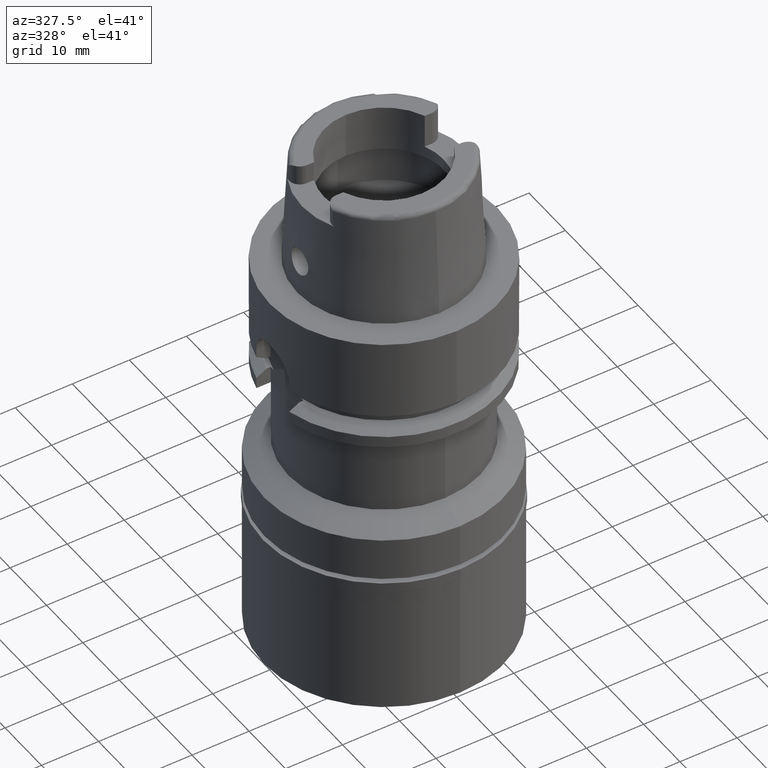
[diagram: clean part render]
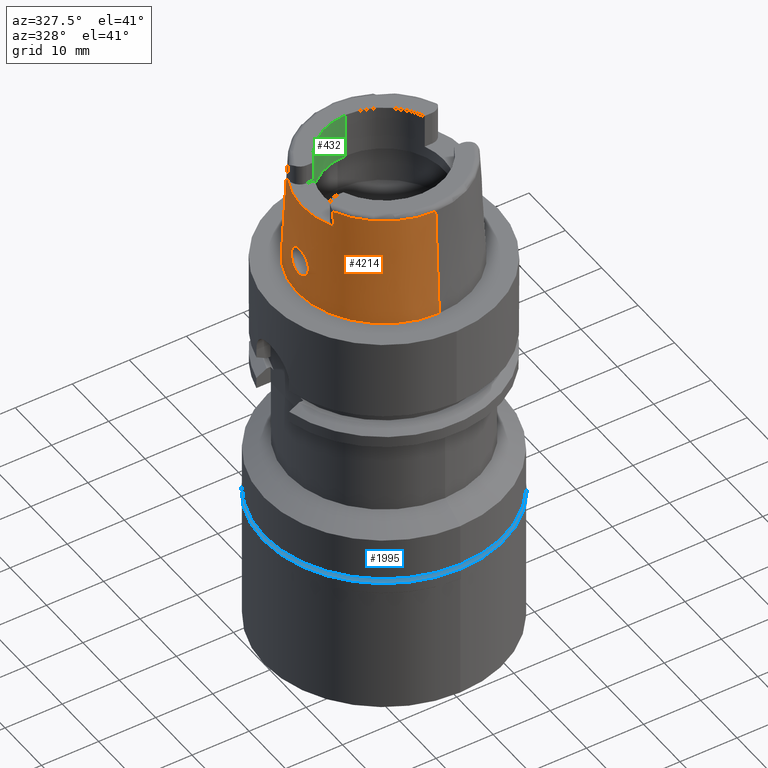
[diagram: same view with three faces highlighted in distinct colors, each labeled with its STEP entity id]
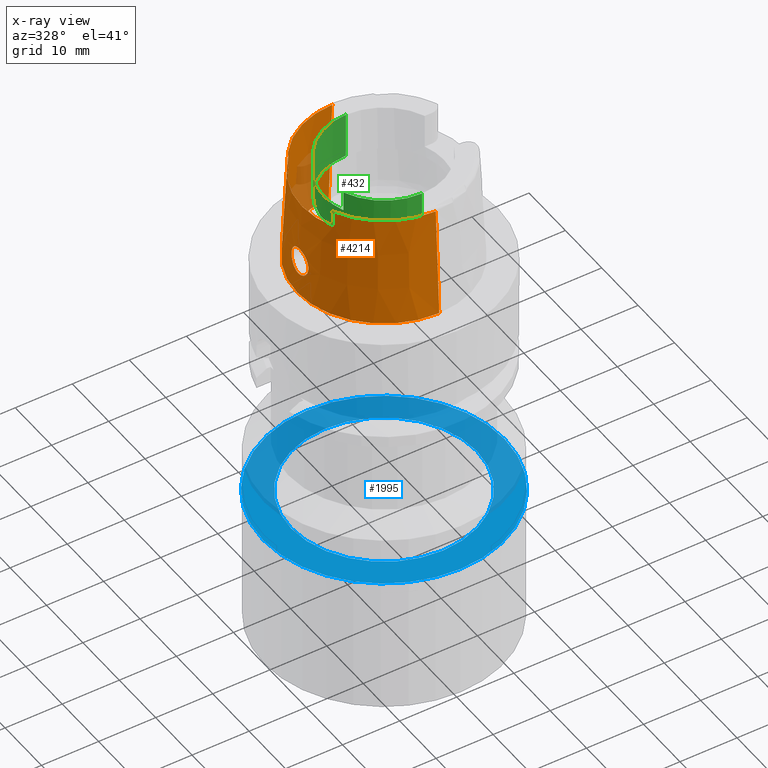
[diagram: x-ray of the same camera — body ghosted, the three highlighted faces saturated]
A machine part, auxiliary view with three faces highlighted in distinct colors.
The next image is the same camera in x-ray (body ghosted, the three faces saturated) — at least one of them is partly hidden behind the body in this view.
Their STEP definitions:

[orange] entity #4214 — the highlighted conical surface has half-angle 2.862 deg.
#6 = CARTESIAN_POINT ( 'NONE',  ( -14.93067039584291145, -1.362090481494300898, 4.144866779355466768 ) ) ;
#13 = CARTESIAN_POINT ( 'NONE',  ( -14.83944829149123557, 1.920865196924755658, 4.734944257616546359 ) ) ;
#55 = CARTESIAN_POINT ( 'NONE',  ( 0.0000000000000000000, -14.23797715755999782, 19.23995141520000018 ) ) ;
#62 = CARTESIAN_POINT ( 'NONE',  ( -14.91310396872252575, -1.491573946310817744, 4.248696059834359495 ) ) ;
#75 = CARTESIAN_POINT ( 'NONE',  ( -14.83806634631329047, 1.927556613228689875, 4.745153509508408973 ) ) ;
#79 = DIRECTION ( 'NONE',  ( 0.0000000000000000000, 0.0000000000000000000, -1.000000000000000000 ) ) ;
#115 = CARTESIAN_POINT ( 'NONE',  ( 0.0000000000000000000, -14.23797715755999782, 19.23995141520000018 ) ) ;
#121 = CARTESIAN_POINT ( 'NONE',  ( -14.74608443316949469, -1.334529073644260322, 7.873385431592797801 ) ) ;
#127 = CIRCLE ( 'NONE', #5142, 14.37497927185999735 ) ;
#143 = EDGE_CURVE ( 'NONE', #242, #1725, #855, .T. ) ;
#152 = CARTESIAN_POINT ( 'NONE',  ( -14.82500466665354644, -1.988607213980087440, 4.841903827004279570 ) ) ;
#178 = CARTESIAN_POINT ( 'NONE',  ( -12.87999944956999876, -6.279959759598000346, 17.41350766865000210 ) ) ;
#180 = CARTESIAN_POINT ( 'NONE',  ( -14.89626996519743152, -1.604267813158911871, 4.351834802983203687 ) ) ;
#196 = CARTESIAN_POINT ( 'NONE',  ( -12.88000052917000104, 6.174983824079000705, 18.32681557891000068 ) ) ;
#203 = CARTESIAN_POINT ( 'NONE',  ( -14.79651620956700953, -2.108384536659244635, 5.080713633402590190 ) ) ;
#227 = CARTESIAN_POINT ( 'NONE',  ( -14.72868848502547934, -1.634210782034564602, 7.618442779722961689 ) ) ;
#242 = VERTEX_POINT ( 'NONE', #115 ) ;
#256 = EDGE_CURVE ( 'NONE', #4327, #2714, #5045, .T. ) ;
#259 = CARTESIAN_POINT ( 'NONE',  ( -14.75065066622446786, 1.248869387038419543, 7.931458822987643487 ) ) ;
#283 = CARTESIAN_POINT ( 'NONE',  ( -14.74916509713738755, 1.277070416429765931, 7.912880851804399818 ) ) ;
#309 = CARTESIAN_POINT ( 'NONE',  ( -14.71548053539402545, 1.856551455255551097, 7.365954699138888451 ) ) ;
#310 = AXIS2_PLACEMENT_3D ( 'NONE', #1813, #3495, #2228 ) ;
#334 = CARTESIAN_POINT ( 'NONE',  ( -14.72894151622812942, 1.630001447954815053, 7.622681509327948746 ) ) ;
#359 = CARTESIAN_POINT ( 'NONE',  ( -14.77214853697977404, 2.195469634617379651, 5.313386016948218327 ) ) ;
#455 = CARTESIAN_POINT ( 'NONE',  ( -15.01500049748000265, 0.2875948828744168684, 3.700000000000000622 ) ) ;
#471 = EDGE_CURVE ( 'NONE', #582, #2415, #3737, .T. ) ;
#478 = CARTESIAN_POINT ( 'NONE',  ( -14.98146849302593075, -0.8667454909646099548, 3.869551887766782272 ) ) ;
#485 = CARTESIAN_POINT ( 'NONE',  ( -14.91210914003032073, 1.507803154627689990, 4.254661582304790635 ) ) ;
#532 = CARTESIAN_POINT ( 'NONE',  ( -14.74145154041230299, -1.418519851082667982, 7.810687532810345779 ) ) ;
#562 = CARTESIAN_POINT ( 'NONE',  ( -14.79464414804532524, -2.115615470398362508, 5.097451385184544215 ) ) ;
#582 = VERTEX_POINT ( 'NONE', #747 ) ;
#585 = CARTESIAN_POINT ( 'NONE',  ( -12.87999970122000093, 6.348941909170999764, 16.80451821834000015 ) ) ;
#589 = FACE_BOUND ( 'NONE', #2978, .T. ) ;
#592 = CARTESIAN_POINT ( 'NONE',  ( -14.70427556541796932, -2.242753402696259890, 6.515453700426912853 ) ) ;
#619 = CARTESIAN_POINT ( 'NONE',  ( -14.71591634762173761, -1.851010656519839204, 7.367641415921653447 ) ) ;
#646 = CARTESIAN_POINT ( 'NONE',  ( -14.72810652126300290, -1.643899438463442442, 7.608616736244662171 ) ) ;
#676 = LINE ( 'NONE', #2374, #1281 ) ;
#683 = CARTESIAN_POINT ( 'NONE',  ( -14.78448543574828378, 2.153253451957574782, 5.191167572852379841 ) ) ;
#710 = CARTESIAN_POINT ( 'NONE',  ( -14.74232365460488126, 1.405631293392346270, 7.826671954222274685 ) ) ;
#735 = CARTESIAN_POINT ( 'NONE',  ( -14.77224879214885966, 0.7505152428910545348, 8.174746617854568242 ) ) ;
#747 = CARTESIAN_POINT ( 'NONE',  ( -12.88000032454999833, -6.068406997786000012, 19.23995951162000040 ) ) ;
#755 = CARTESIAN_POINT ( 'NONE',  ( -14.73755832673177757, 2.287945003074233874, 5.721157903945859324 ) ) ;
#783 = CARTESIAN_POINT ( 'NONE',  ( -14.70335155943988070, 2.120663494321608500, 6.890419546396395312 ) ) ;
#806 = AXIS2_PLACEMENT_3D ( 'NONE', #5338, #1575, #3260 ) ;
#855 = LINE ( 'NONE', #55, #3288 ) ;
#887 = CARTESIAN_POINT ( 'NONE',  ( -14.98573300804535613, -0.8105616222209865995, 3.847409394899663937 ) ) ;
#911 = EDGE_LOOP ( 'NONE', ( #4897, #4172, #5397, #1370, #2483, #4599, #2535, #2963 ) ) ;
#930 = CARTESIAN_POINT ( 'NONE',  ( -14.88469709782662775, 1.675450720866733079, 4.424091095539424145 ) ) ;
#949 = CARTESIAN_POINT ( 'NONE',  ( -14.72892194146861300, -1.630326765904550168, 7.622354658135987115 ) ) ;
#969 = CARTESIAN_POINT ( 'NONE',  ( -12.87999997686000064, 6.279941281248999196, 17.41350821368000368 ) ) ;
#974 = CARTESIAN_POINT ( 'NONE',  ( -14.74370305881243226, -2.273494354010094920, 5.643703912303880799 ) ) ;
#1000 = CARTESIAN_POINT ( 'NONE',  ( -14.75280474390102547, -1.208749384230735746, 7.958775213683386696 ) ) ;
#1014 = EDGE_CURVE ( 'NONE', #242, #582, #2792, .T. ) ;
#1025 = CARTESIAN_POINT ( 'NONE',  ( 0.0000000000000000000, 14.23797715755999782, 19.23995141520000018 ) ) ;
#1030 = CARTESIAN_POINT ( 'NONE',  ( -14.72897709351733830, -1.629409398811735077, 7.623276517050591394 ) ) ;
#1042 = CARTESIAN_POINT ( 'NONE',  ( -14.78499286951999991, 0.0000000000000000000, 8.300000000000000711 ) ) ;
#1059 = CARTESIAN_POINT ( 'NONE',  ( -14.89481368548783102, -1.613535003736988216, 4.360916719081137316 ) ) ;
#1081 = CARTESIAN_POINT ( 'NONE',  ( -14.78499286951999991, 0.0000000000000000000, 8.300000000000000711 ) ) ;
#1094 = CARTESIAN_POINT ( 'NONE',  ( -14.76520960067109911, 0.9396929727427508761, 8.100206560318282456 ) ) ;
#1123 = CARTESIAN_POINT ( 'NONE',  ( -14.72917008481525158, 1.626335054895570176, 7.626357975752745766 ) ) ;
#1149 = CARTESIAN_POINT ( 'NONE',  ( -14.81756262028005366, 2.021953529839818575, 4.903131437947064519 ) ) ;
#1171 = CARTESIAN_POINT ( 'NONE',  ( -14.75229764475537664, 1.217078737428059387, 7.951799688171607094 ) ) ;
#1197 = CARTESIAN_POINT ( 'NONE',  ( -14.72897087555342566, 1.629527963081279784, 7.623157040380334593 ) ) ;
#1242 = CARTESIAN_POINT ( 'NONE',  ( -14.96044124778226347, -1.107333800416907543, 3.978517854689441524 ) ) ;
#1248 = CARTESIAN_POINT ( 'NONE',  ( -12.88000127221999946, -6.383224527686000904, 16.50000000000000000 ) ) ;
#1281 = VECTOR ( 'NONE', #3660, 1000.000000000000227 ) ;
#1291 = CARTESIAN_POINT ( 'NONE',  ( -15.01500049747999910, 0.0000000000000000000, 3.700000000000000178 ) ) ;
#1326 = CARTESIAN_POINT ( 'NONE',  ( -14.85768821190912448, 1.828936271935061919, 4.603326515172784461 ) ) ;
#1370 = ORIENTED_EDGE ( 'NONE', *, *, #4485, .T. ) ;
#1386 = VERTEX_POINT ( 'NONE', #1986 ) ;
#1402 = CARTESIAN_POINT ( 'NONE',  ( -14.70695119762758019, -2.017575393268326689, 7.114378731139957779 ) ) ;
#1431 = CARTESIAN_POINT ( 'NONE',  ( -14.76436995686541742, -0.9582161836029936541, 8.090961219284205086 ) ) ;
#1459 = CARTESIAN_POINT ( 'NONE',  ( -14.83340277061229528, -1.949794907818600764, 4.777805450310015800 ) ) ;
#1479 = CARTESIAN_POINT ( 'NONE',  ( -12.87999878070000115, 6.068418773163000601, 19.23992100636999680 ) ) ;
#1486 = CARTESIAN_POINT ( 'NONE',  ( -14.77580590472610922, -2.186709105759337746, 5.268314404120896910 ) ) ;
#1506 = CARTESIAN_POINT ( 'NONE',  ( 0.0000000000000000000, 1.342457523729000028E-14, 9.619975707600000092 ) ) ;
#1517 = CARTESIAN_POINT ( 'NONE',  ( -14.70447440029360919, 2.082392941413444998, 6.977479519684752773 ) ) ;
#1540 = CARTESIAN_POINT ( 'NONE',  ( -14.70531886270774180, 2.060547474098588516, 7.022404371760039510 ) ) ;
#1567 = CARTESIAN_POINT ( 'NONE',  ( -14.70731483616368429, 2.271690575929560474, 6.367440628851775308 ) ) ;
#1575 = DIRECTION ( 'NONE',  ( 0.0000000000000000000, 0.0000000000000000000, -1.000000000000000000 ) ) ;
#1590 = CARTESIAN_POINT ( 'NONE',  ( -14.70192436212322029, 2.185239197687830703, 6.733790201273015086 ) ) ;
#1615 = CARTESIAN_POINT ( 'NONE',  ( -14.77731901647931778, 0.5814295097292034864, 8.226674876815033954 ) ) ;
#1665 = CARTESIAN_POINT ( 'NONE',  ( -12.88000127221999946, -6.348934803475999367, 16.80451756411999753 ) ) ;
#1689 = CARTESIAN_POINT ( 'NONE',  ( -14.91762962556015992, -1.459175269506739703, 4.221655272623157984 ) ) ;
#1700 = CARTESIAN_POINT ( 'NONE',  ( -14.88795102123442682, 1.655834115151495922, 4.403659648071742261 ) ) ;
#1725 = VERTEX_POINT ( 'NONE', #3320 ) ;
#1737 = CARTESIAN_POINT ( 'NONE',  ( -14.87063154957925448, 1.757257209734059966, 4.515589923120148619 ) ) ;
#1753 = DIRECTION ( 'NONE',  ( 0.0000000000000000000, -0.04993926899656212642, -0.9987522562738413434 ) ) ;
#1760 = CARTESIAN_POINT ( 'NONE',  ( -14.90604738335100699, -1.540007351965887672, 4.291538136823286997 ) ) ;
#1772 = EDGE_CURVE ( 'NONE', #3802, #1386, #676, .T. ) ;
#1813 = CARTESIAN_POINT ( 'NONE',  ( 0.0000000000000000000, 1.342457523729000028E-14, 5.684341886080998387E-14 ) ) ;
#1821 = CARTESIAN_POINT ( 'NONE',  ( -14.80051191171063962, -2.092654504464020349, 5.045447799655709886 ) ) ;
#1849 = CARTESIAN_POINT ( 'NONE',  ( -14.74746080042011620, -1.308997046772390149, 7.891208714050676143 ) ) ;
#1877 = DIRECTION ( 'NONE',  ( 0.0000000000000000000, -1.000000000000000000, 0.0000000000000000000 ) ) ;
#1880 = CARTESIAN_POINT ( 'NONE',  ( -14.72572401761955696, -1.683675409649487253, 7.567183781892929950 ) ) ;
#1906 = CARTESIAN_POINT ( 'NONE',  ( -14.87667291724587848, -1.724872378502379400, 4.476673139968537107 ) ) ;
#1931 = CARTESIAN_POINT ( 'NONE',  ( -14.73131160473731427, -2.293630806101678132, 5.825167084722642663 ) ) ;
#1944 = CARTESIAN_POINT ( 'NONE',  ( -14.78499286952000347, 0.1391762053642093266, 8.300000000000004263 ) ) ;
#1955 = CARTESIAN_POINT ( 'NONE',  ( -14.77912399492555551, -0.5828660134262174664, 8.248663753829019285 ) ) ;
#1958 = EDGE_CURVE ( 'NONE', #2512, #2840, #2761, .T. ) ;
#1965 = CARTESIAN_POINT ( 'NONE',  ( -14.78749428242757702, 2.142298226236621694, 5.162945254209913237 ) ) ;
#1986 = CARTESIAN_POINT ( 'NONE',  ( 0.0000000000000000000, 15.20000663301000010, 5.684341886080998387E-14 ) ) ;
#1987 = CARTESIAN_POINT ( 'NONE',  ( -14.73733843571934088, 1.491307859395289093, 7.752627071775510359 ) ) ;
#2016 = CARTESIAN_POINT ( 'NONE',  ( -14.70375633489581801, 2.105298314609164834, 6.926365719941864896 ) ) ;
#2040 = CARTESIAN_POINT ( 'NONE',  ( -14.70904964857137109, 1.978094957324152858, 7.175922712739461140 ) ) ;
#2068 = CARTESIAN_POINT ( 'NONE',  ( -14.72139607976438747, 1.755544240371265108, 7.496568281815588541 ) ) ;
#2118 = CARTESIAN_POINT ( 'NONE',  ( -15.00363965245305664, -0.5093467595364097322, 3.755864557405924398 ) ) ;
#2182 = CARTESIAN_POINT ( 'NONE',  ( -14.97210947237109302, -0.9853722869793565264, 3.918267754345305498 ) ) ;
#2191 = CARTESIAN_POINT ( 'NONE',  ( -14.84908900462590253, 1.873838734911903892, 4.664173250167412021 ) ) ;
#2228 = DIRECTION ( 'NONE',  ( 0.0000000000000000000, 1.000000000000000000, 0.0000000000000000000 ) ) ;
#2235 = CARTESIAN_POINT ( 'NONE',  ( -14.74279445389535326, -1.394512417060721265, 7.829317921844797468 ) ) ;
#2262 = CARTESIAN_POINT ( 'NONE',  ( -14.72500522269744039, -2.299251340268331667, 5.931493696674770000 ) ) ;
#2292 = CARTESIAN_POINT ( 'NONE',  ( -14.70308285744127375, -2.132793884323237243, 6.860978152384944018 ) ) ;
#2318 = CARTESIAN_POINT ( 'NONE',  ( -14.72033911811032247, -1.774680738396927193, 7.463618512467129484 ) ) ;
#2338 = EDGE_CURVE ( 'NONE', #2714, #3802, #2851, .T. ) ;
#2343 = CARTESIAN_POINT ( 'NONE',  ( -14.72851327431124524, -1.637126646460361989, 7.615496733289927711 ) ) ;
#2368 = FACE_OUTER_BOUND ( 'NONE', #911, .T. ) ;
#2374 = CARTESIAN_POINT ( 'NONE',  ( 0.0000000000000000000, 14.23797715755999782, 19.23995141520000018 ) ) ;
#2383 = CARTESIAN_POINT ( 'NONE',  ( -14.76157213889350928, 2.228541951820703915, 5.425801879163659081 ) ) ;
#2402 = CARTESIAN_POINT ( 'NONE',  ( -14.71467078618427671, 2.295567278821609492, 6.147331701477814825 ) ) ;
#2415 = VERTEX_POINT ( 'NONE', #2541 ) ;
#2425 = CARTESIAN_POINT ( 'NONE',  ( -14.76781662814378393, 0.8727030281569216896, 8.128007312701029718 ) ) ;
#2450 = CARTESIAN_POINT ( 'NONE',  ( -14.76254684623230062, 1.002444707467527119, 8.071427777971580397 ) ) ;
#2452 = CARTESIAN_POINT ( 'NONE',  ( -14.78499286951999991, 0.0000000000000000000, 8.300000000000000711 ) ) ;
#2475 = CARTESIAN_POINT ( 'NONE',  ( -14.70329711340830414, 2.122903074625142494, 6.885084846660765479 ) ) ;
#2483 = ORIENTED_EDGE ( 'NONE', *, *, #143, .F. ) ;
#2512 = VERTEX_POINT ( 'NONE', #4198 ) ;
#2526 = CARTESIAN_POINT ( 'NONE',  ( -14.93864930905789024, -1.297529804689607769, 4.099457719943875311 ) ) ;
#2533 = CARTESIAN_POINT ( 'NONE',  ( -15.00350693495899179, 0.5889673526500801559, 3.754704218327635790 ) ) ;
#2535 = ORIENTED_EDGE ( 'NONE', *, *, #471, .T. ) ;
#2541 = CARTESIAN_POINT ( 'NONE',  ( -12.88000127221999946, -6.383224527686000904, 16.50000000000000000 ) ) ;
#2619 = CARTESIAN_POINT ( 'NONE',  ( -14.83565324028796795, 1.939134470291929535, 4.763120168316114622 ) ) ;
#2642 = CARTESIAN_POINT ( 'NONE',  ( -14.70267192490671881, -2.191714772571646375, 6.698454189033792971 ) ) ;
#2653 = DIRECTION ( 'NONE',  ( -0.001485959642573941343, -0.9999988959613608230, 0.0000000000000000000 ) ) ;
#2668 = CARTESIAN_POINT ( 'NONE',  ( -14.70428720418609458, -2.078658382552286188, 6.992060466639236971 ) ) ;
#2691 = CARTESIAN_POINT ( 'NONE',  ( -12.88000000001000167, 6.383230300259000067, 16.50000000000000000 ) ) ;
#2703 = CARTESIAN_POINT ( 'NONE',  ( -14.75630819174997477, -1.137741817678253220, 8.000312569021527764 ) ) ;
#2714 = VERTEX_POINT ( 'NONE', #3983 ) ;
#2719 = CIRCLE ( 'NONE', #310, 15.20000663301000010 ) ;
#2730 = CARTESIAN_POINT ( 'NONE',  ( -14.80653596740143740, -2.068466250968886921, 4.993009506829769073 ) ) ;
#2757 = CARTESIAN_POINT ( 'NONE',  ( -14.72730130297309969, -1.657321732106804557, 7.594833984964914464 ) ) ;
#2761 = B_SPLINE_CURVE_WITH_KNOTS ( 'NONE', 3,
 ( #3763, #5426, #3349, #2118, #5106, #3791, #4668, #887, #4270, #5016, #478, #2182, #1242, #2526, #6, #1689, #62, #1760, #3441, #4700, #180, #1059, #3138, #1906, #4352, #3996, #1459, #152, #4818, #2730, #1821, #203, #562, #1486, #3091, #974, #3502, #1931, #4407, #2262, #4733, #4760, #4024, #592, #4431, #2642, #3582, #4328, #3605, #2292, #5249, #2668, #1402, #5277, #619, #2318, #4787, #1880, #2757, #646, #2343, #227, #3062, #949, #1030, #3164, #4844, #3114, #532, #2235, #3913, #121, #1849, #5164, #5220, #3939, #1000, #2703, #3531, #5196, #1431, #4380, #3969, #3557, #3187, #4866, #1955, #2782, #1081 ),
 .UNSPECIFIED., .F., .F.,
 ( 4, 2, 2, 1, 1, 2, 2, 2, 2, 2, 1, 2, 2, 2, 2, 2, 1, 2, 2, 2, 2, 2, 2, 2, 2, 1, 1, 2, 2, 2, 2, 1, 1, 1, 1, 1, 2, 2, 2, 2, 2, 1, 1, 2, 2, 2, 2, 1, 1, 2, 2, 4 ),
 ( 0.0000000000000000000, 0.06249999999992095212, 0.09374999999988141430, 0.1093749999998616385, 0.1171874999998517713, 0.1210937499998469141, 0.1249999999998420708, 0.1874999999997653544, 0.2187499999997269684, 0.2343749999997077338, 0.2421874999996980471, 0.2460937499996931621, 0.2499999999996883049, 0.2812499999996496691, 0.3124999999996110334, 0.3437499999995723976, 0.3593749999995532463, 0.3671874999995435318, 0.3749999999995338174, 0.4374999999994567679, 0.4687499999994184097, 0.4843749999993992583, 0.4999999999993800515, 0.5624999999993033351, 0.5937499999992648103, 0.6093749999992453814, 0.6171874999992358335, 0.6210937499992310595, 0.6249999999992263966, 0.6874999999991490141, 0.7187499999991101562, 0.7343749999990906163, 0.7421874999990808464, 0.7460937499990760724, 0.7480468749990736299, 0.7490234374990722976, 0.7495117187490717425, 0.7499999999990710764, 0.7812499999991816546, 0.7968749999992369437, 0.8046874999992645883, 0.8085937499992784661, 0.8105468749992854605, 0.8115234374992890132, 0.8124999999992925659, 0.8437499999994093614, 0.8593749999994676481, 0.8671874999994967359, 0.8710937499995112798, 0.8730468749995187183, 0.8749999999995261568, 1.000000000000000000 ),
 .UNSPECIFIED. ) ;
#2782 = CARTESIAN_POINT ( 'NONE',  ( -14.78499286952000347, -0.2788139103429111421, 8.300000000000004263 ) ) ;
#2792 = CIRCLE ( 'NONE', #3226, 14.23797715756000315 ) ;
#2794 = CARTESIAN_POINT ( 'NONE',  ( -14.72894432952862331, 1.629955733090734160, 7.622727429118725695 ) ) ;
#2821 = CARTESIAN_POINT ( 'NONE',  ( -14.72824493812339242, 2.300097287051681594, 5.864670775267113889 ) ) ;
#2840 = VERTEX_POINT ( 'NONE', #2452 ) ;
#2845 = CARTESIAN_POINT ( 'NONE',  ( -14.77914612434614305, 0.5065893275556476727, 8.244784730271026874 ) ) ;
#2851 = CIRCLE ( 'NONE', #806, 14.23797715756000670 ) ;
#2868 = CARTESIAN_POINT ( 'NONE',  ( -14.71324275208298360, 2.292929173898669237, 6.183934896837564033 ) ) ;
#2893 = CARTESIAN_POINT ( 'NONE',  ( -14.76871162551292294, 0.8492275329354195268, 8.137520009999340331 ) ) ;
#2918 = CARTESIAN_POINT ( 'NONE',  ( -14.97618323415939123, 0.9317886191427273701, 3.897084140343746839 ) ) ;
#2963 = ORIENTED_EDGE ( 'NONE', *, *, #3575, .T. ) ;
#2974 = CARTESIAN_POINT ( 'NONE',  ( -14.82185510565172315, 2.003055501365056390, 4.868888309891364230 ) ) ;
#2978 = EDGE_LOOP ( 'NONE', ( #4545, #4187 ) ) ;
#3062 = CARTESIAN_POINT ( 'NONE',  ( -14.72880548949702906, -1.632263927099383283, 7.620406240313060131 ) ) ;
#3091 = CARTESIAN_POINT ( 'NONE',  ( -14.76150077880795664, -2.231002111543549660, 5.420756098364789999 ) ) ;
#3095 = CARTESIAN_POINT ( 'NONE',  ( 0.0000000000000000000, 1.342457523729000028E-14, 16.50000000000000000 ) ) ;
#3114 = CARTESIAN_POINT ( 'NONE',  ( -14.73772957017719420, -1.484170365224512844, 7.757950501166339663 ) ) ;
#3138 = CARTESIAN_POINT ( 'NONE',  ( -14.88524238361236662, -1.673868166975515326, 4.420799314776284739 ) ) ;
#3164 = CARTESIAN_POINT ( 'NONE',  ( -14.73066750488116838, -1.603006430343710154, 7.651071584789217894 ) ) ;
#3187 = CARTESIAN_POINT ( 'NONE',  ( -14.76710394815613547, -0.8909768962074308130, 8.120418769335319809 ) ) ;
#3201 = CARTESIAN_POINT ( 'NONE',  ( -14.71959599955456355, 2.299974944270385180, 6.035886644995315464 ) ) ;
#3226 = AXIS2_PLACEMENT_3D ( 'NONE', #4684, #79, #2653 ) ;
#3228 = CARTESIAN_POINT ( 'NONE',  ( -14.73233396820092622, 1.575108759304388650, 7.676441944242695214 ) ) ;
#3251 = CARTESIAN_POINT ( 'NONE',  ( -14.79802160946599443, 2.103004319812436407, 5.066502270247922546 ) ) ;
#3260 = DIRECTION ( 'NONE',  ( -0.9046226299953515904, 0.4262134410131772633, 0.0000000000000000000 ) ) ;
#3274 = CARTESIAN_POINT ( 'NONE',  ( -14.76759282358140091, 0.8784884789026358165, 8.125623012111752530 ) ) ;
#3288 = VECTOR ( 'NONE', #1753, 1000.000000000000227 ) ;
#3303 = CARTESIAN_POINT ( 'NONE',  ( -14.72949369139115738, 1.621143726508178284, 7.631538207431914245 ) ) ;
#3320 = CARTESIAN_POINT ( 'NONE',  ( 0.0000000000000000000, -15.20000663301000010, 1.527666881883999820E-13 ) ) ;
#3344 = CARTESIAN_POINT ( 'NONE',  ( -12.88000000001000167, 6.383230300259000067, 16.50000000000000000 ) ) ;
#3349 = CARTESIAN_POINT ( 'NONE',  ( -15.01216028622326526, -0.2893514826768835979, 3.713389463834889437 ) ) ;
#3386 = CARTESIAN_POINT ( 'NONE',  ( -14.97156710622258124, 0.9854910531369711624, 3.921342096694119483 ) ) ;
#3419 = CARTESIAN_POINT ( 'NONE',  ( -14.83207361075089814, 1.956165174096666126, 4.789961176406795751 ) ) ;
#3441 = CARTESIAN_POINT ( 'NONE',  ( -14.90245206563647784, -1.564182553417463151, 4.313529209441409051 ) ) ;
#3451 = CARTESIAN_POINT ( 'NONE',  ( -14.96725100090343119, 1.032129682839791229, 3.944287530079084281 ) ) ;
#3472 = DIRECTION ( 'NONE',  ( 0.0000000000000000000, 0.0000000000000000000, -1.000000000000000000 ) ) ;
#3495 = DIRECTION ( 'NONE',  ( 0.0000000000000000000, 0.0000000000000000000, 1.000000000000000000 ) ) ;
#3502 = CARTESIAN_POINT ( 'NONE',  ( -14.73838048029421444, -2.283680775675120511, 5.717091168989129280 ) ) ;
#3531 = CARTESIAN_POINT ( 'NONE',  ( -14.76093427693573723, -1.037458545602369275, 8.053072446487565372 ) ) ;
#3557 = CARTESIAN_POINT ( 'NONE',  ( -14.76681673583665066, -0.8982511656894278662, 8.117347498702688569 ) ) ;
#3574 = CARTESIAN_POINT ( 'NONE',  ( -12.87999878070000115, 6.104119107050000714, 18.93561185576999861 ) ) ;
#3575 = EDGE_CURVE ( 'NONE', #2415, #4327, #127, .T. ) ;
#3582 = CARTESIAN_POINT ( 'NONE',  ( -14.70255726380810479, -2.173842776584447467, 6.752987317107290721 ) ) ;
#3605 = CARTESIAN_POINT ( 'NONE',  ( -14.70295143380064040, -2.139943755600759001, 6.843050327534545119 ) ) ;
#3615 = CARTESIAN_POINT ( 'NONE',  ( -14.78353118322653614, 0.2843058687309619192, 8.287342366417899342 ) ) ;
#3638 = CARTESIAN_POINT ( 'NONE',  ( -14.79076528743510721, 2.130215049351867229, 5.132678231876006691 ) ) ;
#3660 = DIRECTION ( 'NONE',  ( 0.0000000000000000000, 0.04993926899656212642, -0.9987522562738413434 ) ) ;
#3668 = CARTESIAN_POINT ( 'NONE',  ( -14.70278748017977755, 2.228698084133924340, 6.587594761523975606 ) ) ;
#3693 = CARTESIAN_POINT ( 'NONE',  ( -14.70936273464150013, 2.282332915479556412, 6.293907186165471401 ) ) ;
#3716 = CARTESIAN_POINT ( 'NONE',  ( -14.74920249067393208, 1.276362586312185687, 7.913349462678541002 ) ) ;
#3737 = B_SPLINE_CURVE_WITH_KNOTS ( 'NONE', 3,
 ( #5022, #3967, #4617, #178, #1665, #1248 ),
 .UNSPECIFIED., .F., .F.,
 ( 4, 1, 1, 4 ),
 ( 0.0000000000000000000, 0.3333333333333000081, 0.6666666666667000474, 1.000000000000000000 ),
 .UNSPECIFIED. ) ;
#3744 = CARTESIAN_POINT ( 'NONE',  ( -14.72894975717507826, 1.629867885914059400, 7.622815666948546287 ) ) ;
#3763 = CARTESIAN_POINT ( 'NONE',  ( -15.01500049747999910, 0.0000000000000000000, 3.700000000000000178 ) ) ;
#3791 = CARTESIAN_POINT ( 'NONE',  ( -14.99369891305448732, -0.6924062870451780372, 3.806366610162610797 ) ) ;
#3802 = VERTEX_POINT ( 'NONE', #1025 ) ;
#3913 = CARTESIAN_POINT ( 'NONE',  ( -14.74496220922694434, -1.355091885590645306, 7.858492189043627896 ) ) ;
#3923 = B_SPLINE_CURVE_WITH_KNOTS ( 'NONE', 3,
 ( #1042, #1944, #3615, #2845, #1615, #4517, #735, #5330, #2893, #4971, #2425, #3274, #1094, #2450, #5356, #4086, #4944, #1171, #259, #4135, #4495, #3716, #283, #710, #1987, #3228, #4112, #5377, #3303, #1123, #5307, #1197, #3744, #2794, #334, #4469, #2068, #309, #2040, #4899, #1540, #1517, #2016, #4564, #783, #2475, #1590, #3668, #1567, #3693, #2868, #2402, #4536, #3201, #2821, #755, #4162, #2383, #359, #4877, #683, #1965, #4064, #3638, #3251, #4923, #1149, #2974, #4649, #3419, #2619, #75, #13, #2191, #1326, #1737, #4252, #930, #1700, #4620, #4191, #485, #5087, #5026, #5438, #3451, #3386, #2918, #4711, #4589, #5055, #2533, #455, #1291 ),
 .UNSPECIFIED., .F., .F.,
 ( 4, 2, 2, 1, 1, 1, 2, 2, 2, 2, 1, 1, 1, 2, 2, 2, 2, 2, 1, 1, 1, 2, 2, 2, 2, 1, 1, 2, 2, 2, 2, 2, 2, 2, 2, 1, 1, 2, 2, 2, 2, 1, 2, 2, 2, 1, 1, 2, 2, 2, 2, 1, 1, 2, 2, 4 ),
 ( 0.0000000000000000000, 0.06249999999998881450, 0.09374999999998313849, 0.1093749999999803074, 0.1171874999999788780, 0.1210937499999782951, 0.1230468749999779898, 0.1249999999999776845, 0.1562499999999696632, 0.1718749999999654443, 0.1796874999999632794, 0.1835937499999620581, 0.1855468749999612532, 0.1865234374999608646, 0.1874999999999605038, 0.2187499999999455436, 0.2343749999999380773, 0.2421874999999343581, 0.2460937499999325817, 0.2480468749999325262, 0.2490234374999331091, 0.2495117187499330536, 0.2499999999999329980, 0.3124999999999424349, 0.3437499999999469869, 0.3593749999999493738, 0.3671874999999507061, 0.3710937499999512612, 0.3749999999999517608, 0.4374999999999587552, 0.4687499999999621414, 0.4843749999999635847, 0.4999999999999651390, 0.5624999999999715783, 0.5937499999999746869, 0.6093749999999762412, 0.6171874999999769074, 0.6210937499999773515, 0.6249999999999776845, 0.6562499999999793499, 0.6718749999999801270, 0.6796874999999802380, 0.6835937499999803491, 0.6874999999999804601, 0.7187499999999821254, 0.7343749999999831246, 0.7421874999999837907, 0.7460937499999839018, 0.7499999999999841238, 0.8124999999999884537, 0.8437499999999907851, 0.8593749999999920064, 0.8671874999999924505, 0.8710937499999927836, 0.8749999999999930056, 1.000000000000000000 ),
 .UNSPECIFIED. ) ;
#3931 = AXIS2_PLACEMENT_3D ( 'NONE', #1506, #3968, #1877 ) ;
#3939 = CARTESIAN_POINT ( 'NONE',  ( -14.74875931627776104, -1.284719994653165331, 7.907747946184199961 ) ) ;
#3967 = CARTESIAN_POINT ( 'NONE',  ( -12.88000032454999833, -6.104114246971000135, 18.93559190817000015 ) ) ;
#3968 = DIRECTION ( 'NONE',  ( 0.0000000000000000000, 0.0000000000000000000, -1.000000000000000000 ) ) ;
#3969 = CARTESIAN_POINT ( 'NONE',  ( -14.76638100261844677, -0.9092219599069186753, 8.112682413502355416 ) ) ;
#3983 = CARTESIAN_POINT ( 'NONE',  ( -12.87999878070000115, 6.068418773163000601, 19.23992100636999680 ) ) ;
#3996 = CARTESIAN_POINT ( 'NONE',  ( -14.85052433826698781, -1.867326910339443424, 4.655176625065805318 ) ) ;
#4017 = CONICAL_SURFACE ( 'NONE', #3931, 14.71899189528999941, 0.04996004983832824653 ) ;
#4024 = CARTESIAN_POINT ( 'NONE',  ( -14.70880566597640993, -2.286010980497906964, 6.294440430988674784 ) ) ;
#4064 = CARTESIAN_POINT ( 'NONE',  ( -14.78951888519622138, 2.134852163852197560, 5.144132851382951621 ) ) ;
#4086 = CARTESIAN_POINT ( 'NONE',  ( -14.75627696485396179, 1.137256725693530202, 7.999583472847840326 ) ) ;
#4112 = CARTESIAN_POINT ( 'NONE',  ( -14.73107803916309599, 1.595551126450342361, 7.656677857086164884 ) ) ;
#4135 = CARTESIAN_POINT ( 'NONE',  ( -14.74980996183531445, 1.264880779532175259, 7.920970982088361367 ) ) ;
#4162 = CARTESIAN_POINT ( 'NONE',  ( -14.75511976627432809, 2.246315328130815914, 5.500321343751206626 ) ) ;
#4172 = ORIENTED_EDGE ( 'NONE', *, *, #2338, .T. ) ;
#4187 = ORIENTED_EDGE ( 'NONE', *, *, #1958, .F. ) ;
#4191 = CARTESIAN_POINT ( 'NONE',  ( -14.89105431330060370, 1.636986363018133384, 4.384329374130332191 ) ) ;
#4198 = CARTESIAN_POINT ( 'NONE',  ( -15.01500049747999910, 0.0000000000000000000, 3.700000000000000178 ) ) ;
#4214 = ADVANCED_FACE ( 'NONE', ( #2368, #589 ), #4017, .T. ) ;
#4252 = CARTESIAN_POINT ( 'NONE',  ( -14.87711435010062466, 1.720337022933785542, 4.472604508634263176 ) ) ;
#4270 = CARTESIAN_POINT ( 'NONE',  ( -14.98370270077979782, -0.8376649251337083824, 3.857942191338602278 ) ) ;
#4327 = VERTEX_POINT ( 'NONE', #3344 ) ;
#4328 = CARTESIAN_POINT ( 'NONE',  ( -14.70277974494073092, -2.150489428137420056, 6.816115877785200006 ) ) ;
#4352 = CARTESIAN_POINT ( 'NONE',  ( -14.85941069955853067, -1.821135553507079674, 4.593168545856954665 ) ) ;
#4380 = CARTESIAN_POINT ( 'NONE',  ( -14.76532988860320650, -0.9352318816560473147, 8.101382654225234958 ) ) ;
#4407 = CARTESIAN_POINT ( 'NONE',  ( -14.72910781158842042, -2.296059624444593883, 5.860859638075929468 ) ) ;
#4431 = CARTESIAN_POINT ( 'NONE',  ( -14.70330839272035028, -2.224614707739515307, 6.588979622788073698 ) ) ;
#4469 = CARTESIAN_POINT ( 'NONE',  ( -14.72899884680191818, 1.629047292259273583, 7.623640000578892462 ) ) ;
#4485 = EDGE_CURVE ( 'NONE', #1386, #1725, #2719, .T. ) ;
#4495 = CARTESIAN_POINT ( 'NONE',  ( -14.74944597099916699, 1.271766736470413273, 7.916407312153967979 ) ) ;
#4517 = CARTESIAN_POINT ( 'NONE',  ( -14.77403022231902341, 0.6940881905403901708, 8.193120357893787897 ) ) ;
#4536 = CARTESIAN_POINT ( 'NONE',  ( -14.71779624429510847, 2.299089435308927509, 6.074320456858570694 ) ) ;
#4545 = ORIENTED_EDGE ( 'NONE', *, *, #5315, .F. ) ;
#4564 = CARTESIAN_POINT ( 'NONE',  ( -14.70350583702933278, 2.114586282775590576, 6.904757137275193912 ) ) ;
#4589 = CARTESIAN_POINT ( 'NONE',  ( -14.97931074029115806, 0.8937525079611502443, 3.880737248320559107 ) ) ;
#4599 = ORIENTED_EDGE ( 'NONE', *, *, #1014, .T. ) ;
#4617 = CARTESIAN_POINT ( 'NONE',  ( -12.88000001816999962, -6.175000824242999897, 18.32682661007000036 ) ) ;
#4620 = CARTESIAN_POINT ( 'NONE',  ( -14.89012123114681785, 1.642673009723901068, 4.390119718979512697 ) ) ;
#4649 = CARTESIAN_POINT ( 'NONE',  ( -14.82861406971661467, 1.972211473687794481, 4.816448922810459443 ) ) ;
#4668 = CARTESIAN_POINT ( 'NONE',  ( -14.99023740558533824, -0.7471046007649225773, 3.824124015776134478 ) ) ;
#4684 = CARTESIAN_POINT ( 'NONE',  ( 0.0000000000000000000, 1.459778984583999657E-14, 19.23995141520000018 ) ) ;
#4700 = CARTESIAN_POINT ( 'NONE',  ( -14.89875621037880471, -1.588251035334630856, 4.336394763847635225 ) ) ;
#4711 = CARTESIAN_POINT ( 'NONE',  ( -14.97807171864613984, 0.9089431438949805431, 3.887207885922264072 ) ) ;
#4733 = CARTESIAN_POINT ( 'NONE',  ( -14.72320086832013430, -2.300015047758570574, 5.964567883983803220 ) ) ;
#4736 = DIRECTION ( 'NONE',  ( -0.8960012919965021361, -0.4440514437997010733, 0.0000000000000000000 ) ) ;
#4760 = CARTESIAN_POINT ( 'NONE',  ( -14.71399717630280968, -2.299938799515674148, 6.146546902602311846 ) ) ;
#4787 = CARTESIAN_POINT ( 'NONE',  ( -14.72270205181757241, -1.734437765948310561, 7.511594357146061718 ) ) ;
#4818 = CARTESIAN_POINT ( 'NONE',  ( -14.81265153051832861, -2.042557943649871977, 4.941986107755172775 ) ) ;
#4844 = CARTESIAN_POINT ( 'NONE',  ( -14.73565728363915639, -1.519460231226906766, 7.727037160623735801 ) ) ;
#4866 = CARTESIAN_POINT ( 'NONE',  ( -14.76720284340558464, -0.8884637232073671065, 8.121475464274791278 ) ) ;
#4877 = CARTESIAN_POINT ( 'NONE',  ( -14.77766119581228565, 2.177331302717515182, 5.257021006164206867 ) ) ;
#4897 = ORIENTED_EDGE ( 'NONE', *, *, #256, .T. ) ;
#4899 = CARTESIAN_POINT ( 'NONE',  ( -14.70731309125263131, 2.013645923925792225, 7.113506381970711168 ) ) ;
#4923 = CARTESIAN_POINT ( 'NONE',  ( -14.80532563617980024, 2.074165564302892228, 5.003253247375649693 ) ) ;
#4944 = CARTESIAN_POINT ( 'NONE',  ( -14.75365031735769961, 1.190257103936896765, 7.968174219367558209 ) ) ;
#4971 = CARTESIAN_POINT ( 'NONE',  ( -14.76817634000506985, 0.8633140693810917865, 8.131833604170831009 ) ) ;
#5016 = CARTESIAN_POINT ( 'NONE',  ( -14.98232697345232189, -0.8557114423625644672, 3.865087329688563056 ) ) ;
#5022 = CARTESIAN_POINT ( 'NONE',  ( -12.88000032454999833, -6.068406997786000012, 19.23995951162000040 ) ) ;
#5026 = CARTESIAN_POINT ( 'NONE',  ( -14.95142628625113623, 1.189397609620063134, 4.029955890087917325 ) ) ;
#5045 = B_SPLINE_CURVE_WITH_KNOTS ( 'NONE', 3,
 ( #2691, #585, #969, #196, #3574, #1479 ),
 .UNSPECIFIED., .F., .F.,
 ( 4, 1, 1, 4 ),
 ( 0.0000000000000000000, 0.3333333333333000081, 0.6666666666667000474, 1.000000000000000000 ),
 .UNSPECIFIED. ) ;
#5055 = CARTESIAN_POINT ( 'NONE',  ( -14.97980146225941667, 0.8876740654528938457, 3.878177508175332910 ) ) ;
#5087 = CARTESIAN_POINT ( 'NONE',  ( -14.92936954190189347, 1.380008458273532135, 4.153777226288667634 ) ) ;
#5106 = CARTESIAN_POINT ( 'NONE',  ( -15.00008938838213979, -0.5827649416968734286, 3.773747389866616064 ) ) ;
#5142 = AXIS2_PLACEMENT_3D ( 'NONE', #3095, #3472, #4736 ) ;
#5164 = CARTESIAN_POINT ( 'NONE',  ( -14.74806505195273232, -1.297718925112143706, 7.898933038353749048 ) ) ;
#5196 = CARTESIAN_POINT ( 'NONE',  ( -14.76237145756637581, -1.005060197437146030, 8.069067978536301311 ) ) ;
#5220 = CARTESIAN_POINT ( 'NONE',  ( -14.74847108183087840, -1.290124955125418804, 7.904100494435170710 ) ) ;
#5249 = CARTESIAN_POINT ( 'NONE',  ( -14.70317426040147346, -2.128390254215720923, 6.871787553041311725 ) ) ;
#5277 = CARTESIAN_POINT ( 'NONE',  ( -14.71337196319726814, -1.896351025766428888, 7.303635452517056592 ) ) ;
#5307 = CARTESIAN_POINT ( 'NONE',  ( -14.72904692778996960, 1.628308031692485391, 7.624381426763775060 ) ) ;
#5315 = EDGE_CURVE ( 'NONE', #2840, #2512, #3923, .T. ) ;
#5330 = CARTESIAN_POINT ( 'NONE',  ( -14.76993064904282527, 0.8163403009286105405, 8.150418406945858507 ) ) ;
#5338 = CARTESIAN_POINT ( 'NONE',  ( 0.0000000000000000000, 1.459778984583999657E-14, 19.23995141520000018 ) ) ;
#5356 = CARTESIAN_POINT ( 'NONE',  ( -14.75792313290694757, 1.102782295599661344, 8.018736812026874716 ) ) ;
#5377 = CARTESIAN_POINT ( 'NONE',  ( -14.72981248580882863, 1.616024149936026832, 7.636629822728000505 ) ) ;
#5397 = ORIENTED_EDGE ( 'NONE', *, *, #1772, .T. ) ;
#5426 = CARTESIAN_POINT ( 'NONE',  ( -15.01500049748000265, -0.1430743683271664679, 3.700000000000000178 ) ) ;
#5438 = CARTESIAN_POINT ( 'NONE',  ( -14.95813955795786221, 1.126006096224149156, 3.993238420734707361 ) ) ;

[blue] entity #1995 — the highlighted planar face has unit normal (0, 0, -1).
#351 = DIRECTION ( 'NONE',  ( 0.0000000000000000000, 0.0000000000000000000, -1.000000000000000000 ) ) ;
#581 = EDGE_LOOP ( 'NONE', ( #2203, #1980 ) ) ;
#837 = DIRECTION ( 'NONE',  ( 0.0000000000000000000, 1.000000000000000000, 0.0000000000000000000 ) ) ;
#981 = AXIS2_PLACEMENT_3D ( 'NONE', #3350, #351, #2937 ) ;
#1245 = CIRCLE ( 'NONE', #4263, 16.25000000000000000 ) ;
#1344 = CARTESIAN_POINT ( 'NONE',  ( 0.0000000000000000000, 16.25000000000000000, 0.0000000000000000000 ) ) ;
#1368 = EDGE_LOOP ( 'NONE', ( #4284, #5425 ) ) ;
#1649 = DIRECTION ( 'NONE',  ( 0.0000000000000000000, 0.0000000000000000000, -1.000000000000000000 ) ) ;
#1832 = CARTESIAN_POINT ( 'NONE',  ( 0.0000000000000000000, -16.25000000000000000, 0.0000000000000000000 ) ) ;
#1883 = CARTESIAN_POINT ( 'NONE',  ( 0.0000000000000000000, 0.0000000000000000000, 0.0000000000000000000 ) ) ;
#1980 = ORIENTED_EDGE ( 'NONE', *, *, #3526, .F. ) ;
#1995 = ADVANCED_FACE ( 'NONE', ( #2089, #3736 ), #2552, .F. ) ;
#2089 = FACE_OUTER_BOUND ( 'NONE', #581, .T. ) ;
#2129 = EDGE_CURVE ( 'NONE', #3041, #3355, #1245, .T. ) ;
#2203 = ORIENTED_EDGE ( 'NONE', *, *, #2248, .F. ) ;
#2215 = DIRECTION ( 'NONE',  ( 0.0000000000000000000, 0.0000000000000000000, -1.000000000000000000 ) ) ;
#2248 = EDGE_CURVE ( 'NONE', #4813, #4681, #4690, .T. ) ;
#2256 = CARTESIAN_POINT ( 'NONE',  ( 0.0000000000000000000, -21.14999999999999858, 0.0000000000000000000 ) ) ;
#2389 = CARTESIAN_POINT ( 'NONE',  ( 0.0000000000000000000, 0.0000000000000000000, 0.0000000000000000000 ) ) ;
#2413 = CIRCLE ( 'NONE', #2594, 16.25000000000000000 ) ;
#2552 = PLANE ( 'NONE',  #981 ) ;
#2594 = AXIS2_PLACEMENT_3D ( 'NONE', #2938, #4612, #837 ) ;
#2705 = DIRECTION ( 'NONE',  ( 0.0000000000000000000, 0.0000000000000000000, 1.000000000000000000 ) ) ;
#2875 = DIRECTION ( 'NONE',  ( 0.0000000000000000000, 1.000000000000000000, 0.0000000000000000000 ) ) ;
#2937 = DIRECTION ( 'NONE',  ( 0.0000000000000000000, -1.000000000000000000, 0.0000000000000000000 ) ) ;
#2938 = CARTESIAN_POINT ( 'NONE',  ( 0.0000000000000000000, 0.0000000000000000000, 0.0000000000000000000 ) ) ;
#3041 = VERTEX_POINT ( 'NONE', #1832 ) ;
#3218 = AXIS2_PLACEMENT_3D ( 'NONE', #1883, #2215, #5251 ) ;
#3311 = CARTESIAN_POINT ( 'NONE',  ( 0.0000000000000000000, 0.0000000000000000000, 0.0000000000000000000 ) ) ;
#3350 = CARTESIAN_POINT ( 'NONE',  ( 0.0000000000000000000, 0.0000000000000000000, 0.0000000000000000000 ) ) ;
#3355 = VERTEX_POINT ( 'NONE', #1344 ) ;
#3404 = EDGE_CURVE ( 'NONE', #3355, #3041, #2413, .T. ) ;
#3526 = EDGE_CURVE ( 'NONE', #4681, #4813, #4449, .T. ) ;
#3736 = FACE_BOUND ( 'NONE', #1368, .T. ) ;
#4263 = AXIS2_PLACEMENT_3D ( 'NONE', #2389, #2705, #4383 ) ;
#4284 = ORIENTED_EDGE ( 'NONE', *, *, #3404, .F. ) ;
#4383 = DIRECTION ( 'NONE',  ( 0.0000000000000000000, -1.000000000000000000, 0.0000000000000000000 ) ) ;
#4449 = CIRCLE ( 'NONE', #3218, 21.14999999999999858 ) ;
#4515 = AXIS2_PLACEMENT_3D ( 'NONE', #3311, #1649, #2875 ) ;
#4612 = DIRECTION ( 'NONE',  ( 0.0000000000000000000, 0.0000000000000000000, 1.000000000000000000 ) ) ;
#4681 = VERTEX_POINT ( 'NONE', #2256 ) ;
#4690 = CIRCLE ( 'NONE', #4515, 21.14999999999999858 ) ;
#4813 = VERTEX_POINT ( 'NONE', #5415 ) ;
#5251 = DIRECTION ( 'NONE',  ( 0.0000000000000000000, -1.000000000000000000, 0.0000000000000000000 ) ) ;
#5415 = CARTESIAN_POINT ( 'NONE',  ( 0.0000000000000000000, 21.14999999999999858, 0.0000000000000000000 ) ) ;
#5425 = ORIENTED_EDGE ( 'NONE', *, *, #2129, .F. ) ;

[green] entity #432 — the highlighted cylindrical surface (partial cylindrical patch) has radius 10.5 mm, axis along (0, 0, -1).
#92 = ORIENTED_EDGE ( 'NONE', *, *, #3992, .T. ) ;
#116 = AXIS2_PLACEMENT_3D ( 'NONE', #1809, #4261, #2166 ) ;
#117 = CARTESIAN_POINT ( 'NONE',  ( 0.0000000000000000000, 1.520092839441999965E-14, 20.00000000000000000 ) ) ;
#209 = CARTESIAN_POINT ( 'NONE',  ( 0.0000000000000000000, 1.520092839441999965E-14, 16.50000000000000000 ) ) ;
#424 = VERTEX_POINT ( 'NONE', #2092 ) ;
#432 = ADVANCED_FACE ( 'NONE', ( #2151 ), #5434, .F. ) ;
#453 = DIRECTION ( 'NONE',  ( 0.0000000000000000000, -1.000000000000000000, 0.0000000000000000000 ) ) ;
#564 = AXIS2_PLACEMENT_3D ( 'NONE', #588, #804, #3553 ) ;
#588 = CARTESIAN_POINT ( 'NONE',  ( 0.0000000000000000000, 1.520092839441999965E-14, 24.12500000000000000 ) ) ;
#640 = DIRECTION ( 'NONE',  ( 0.0000000000000000000, 4.506013014787999900E-14, 1.000000000000000000 ) ) ;
#654 = AXIS2_PLACEMENT_3D ( 'NONE', #117, #5130, #5214 ) ;
#679 = CARTESIAN_POINT ( 'NONE',  ( 0.0000000000000000000, -10.50000000000000000, 11.99735026918999914 ) ) ;
#804 = DIRECTION ( 'NONE',  ( 0.0000000000000000000, 0.0000000000000000000, -1.000000000000000000 ) ) ;
#895 = VERTEX_POINT ( 'NONE', #4654 ) ;
#1272 = VERTEX_POINT ( 'NONE', #2892 ) ;
#1331 = ORIENTED_EDGE ( 'NONE', *, *, #3265, .F. ) ;
#1371 = VERTEX_POINT ( 'NONE', #4085 ) ;
#1480 = LINE ( 'NONE', #2752, #3051 ) ;
#1511 = LINE ( 'NONE', #1937, #2798 ) ;
#1545 = EDGE_CURVE ( 'NONE', #3552, #5252, #1511, .T. ) ;
#1546 = ORIENTED_EDGE ( 'NONE', *, *, #3048, .T. ) ;
#1681 = VERTEX_POINT ( 'NONE', #4554 ) ;
#1809 = CARTESIAN_POINT ( 'NONE',  ( 0.0000000000000000000, 1.520092839441999965E-14, 20.00000000000000000 ) ) ;
#1913 = DIRECTION ( 'NONE',  ( 0.0000000000000000000, 0.0000000000000000000, 1.000000000000000000 ) ) ;
#1937 = CARTESIAN_POINT ( 'NONE',  ( -9.697905701747998819, -4.025000000000000355, 20.00000000000000000 ) ) ;
#1981 = VECTOR ( 'NONE', #5372, 1000.000000000000000 ) ;
#2092 = CARTESIAN_POINT ( 'NONE',  ( -9.697905701747998819, 4.025000000000000355, 16.50000000000000000 ) ) ;
#2151 = FACE_OUTER_BOUND ( 'NONE', #2939, .T. ) ;
#2166 = DIRECTION ( 'NONE',  ( -0.9236100668331782559, -0.3833333333332911153, 0.0000000000000000000 ) ) ;
#2428 = EDGE_CURVE ( 'NONE', #3552, #895, #4436, .T. ) ;
#2553 = DIRECTION ( 'NONE',  ( 0.0000000000000000000, 0.0000000000000000000, 1.000000000000000000 ) ) ;
#2701 = AXIS2_PLACEMENT_3D ( 'NONE', #3160, #4839, #453 ) ;
#2729 = ORIENTED_EDGE ( 'NONE', *, *, #4026, .T. ) ;
#2752 = CARTESIAN_POINT ( 'NONE',  ( 0.0000000000000000000, 10.50000000000000000, 11.99735026918999914 ) ) ;
#2798 = VECTOR ( 'NONE', #4464, 1000.000000000000000 ) ;
#2892 = CARTESIAN_POINT ( 'NONE',  ( -9.697905701747998819, 4.025000000000000355, 20.00000000000000000 ) ) ;
#2924 = CARTESIAN_POINT ( 'NONE',  ( 0.0000000000000000000, -10.50000000000000000, 11.99735026918999914 ) ) ;
#2939 = EDGE_LOOP ( 'NONE', ( #3920, #5374, #3937, #2729, #92, #3618, #1331, #1546 ) ) ;
#3048 = EDGE_CURVE ( 'NONE', #424, #5252, #3924, .T. ) ;
#3051 = VECTOR ( 'NONE', #640, 1000.000000000000000 ) ;
#3104 = EDGE_CURVE ( 'NONE', #4874, #895, #4896, .T. ) ;
#3160 = CARTESIAN_POINT ( 'NONE',  ( 0.0000000000000000000, 1.363617650911000050E-14, 11.99735026918999914 ) ) ;
#3265 = EDGE_CURVE ( 'NONE', #424, #1272, #3857, .T. ) ;
#3377 = CARTESIAN_POINT ( 'NONE',  ( -9.697905701747998819, 4.025000000000000355, 16.50000000000000000 ) ) ;
#3513 = DIRECTION ( 'NONE',  ( -0.9236100668331782559, 0.3833333333332911153, 0.0000000000000000000 ) ) ;
#3535 = CARTESIAN_POINT ( 'NONE',  ( -9.697905701747998819, -4.025000000000000355, 20.00000000000000000 ) ) ;
#3552 = VERTEX_POINT ( 'NONE', #3535 ) ;
#3553 = DIRECTION ( 'NONE',  ( 0.0000000000000000000, -1.000000000000000000, 0.0000000000000000000 ) ) ;
#3618 = ORIENTED_EDGE ( 'NONE', *, *, #3805, .T. ) ;
#3658 = CIRCLE ( 'NONE', #2701, 10.50000000000000000 ) ;
#3805 = EDGE_CURVE ( 'NONE', #1371, #1272, #4796, .T. ) ;
#3857 = LINE ( 'NONE', #3377, #4445 ) ;
#3920 = ORIENTED_EDGE ( 'NONE', *, *, #1545, .F. ) ;
#3924 = CIRCLE ( 'NONE', #4272, 10.49999999999999822 ) ;
#3937 = ORIENTED_EDGE ( 'NONE', *, *, #3104, .F. ) ;
#3992 = EDGE_CURVE ( 'NONE', #1681, #1371, #1480, .T. ) ;
#4026 = EDGE_CURVE ( 'NONE', #4874, #1681, #3658, .T. ) ;
#4085 = CARTESIAN_POINT ( 'NONE',  ( 0.0000000000000000000, 10.50000000000000000, 20.00000000000000000 ) ) ;
#4261 = DIRECTION ( 'NONE',  ( 0.0000000000000000000, 0.0000000000000000000, 1.000000000000000000 ) ) ;
#4272 = AXIS2_PLACEMENT_3D ( 'NONE', #209, #1913, #3513 ) ;
#4436 = CIRCLE ( 'NONE', #116, 10.49999999999999822 ) ;
#4445 = VECTOR ( 'NONE', #2553, 1000.000000000000000 ) ;
#4464 = DIRECTION ( 'NONE',  ( 0.0000000000000000000, 0.0000000000000000000, -1.000000000000000000 ) ) ;
#4554 = CARTESIAN_POINT ( 'NONE',  ( 0.0000000000000000000, 10.50000000000000000, 11.99735026918999914 ) ) ;
#4654 = CARTESIAN_POINT ( 'NONE',  ( 0.0000000000000000000, -10.50000000000000000, 20.00000000000000000 ) ) ;
#4772 = CARTESIAN_POINT ( 'NONE',  ( -9.697905701747998819, -4.025000000000000355, 16.50000000000000000 ) ) ;
#4796 = CIRCLE ( 'NONE', #654, 10.50000000000000000 ) ;
#4839 = DIRECTION ( 'NONE',  ( 0.0000000000000000000, 0.0000000000000000000, -1.000000000000000000 ) ) ;
#4874 = VERTEX_POINT ( 'NONE', #2924 ) ;
#4896 = LINE ( 'NONE', #679, #1981 ) ;
#5130 = DIRECTION ( 'NONE',  ( 0.0000000000000000000, 0.0000000000000000000, 1.000000000000000000 ) ) ;
#5214 = DIRECTION ( 'NONE',  ( 0.0000000000000000000, 1.000000000000000000, 0.0000000000000000000 ) ) ;
#5252 = VERTEX_POINT ( 'NONE', #4772 ) ;
#5372 = DIRECTION ( 'NONE',  ( 0.0000000000000000000, -4.506013014787999900E-14, 1.000000000000000000 ) ) ;
#5374 = ORIENTED_EDGE ( 'NONE', *, *, #2428, .T. ) ;
#5434 = CYLINDRICAL_SURFACE ( 'NONE', #564, 10.50000000000000000 ) ;